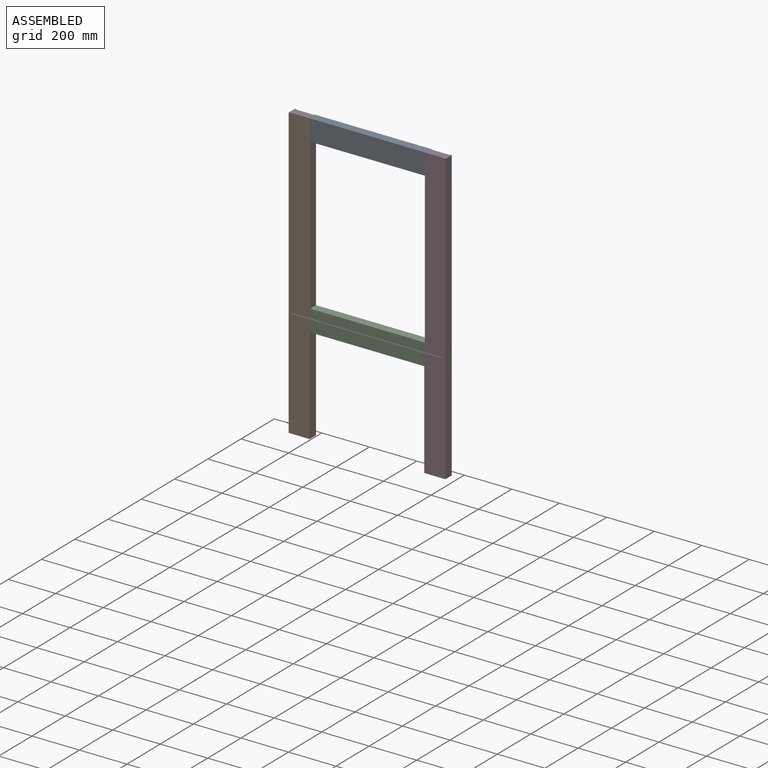
[diagram: assembled view]
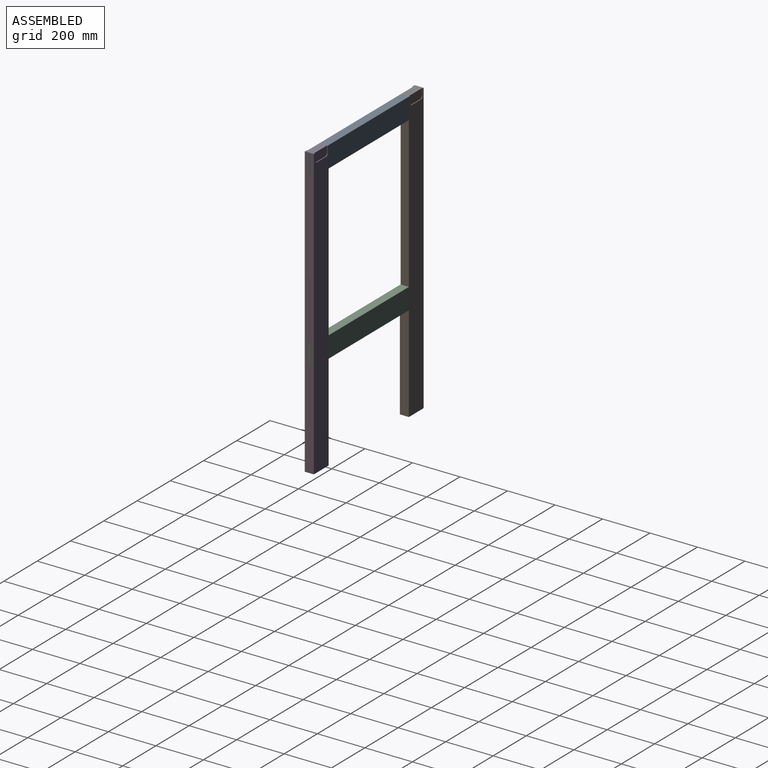
[diagram: assembled view, second angle]
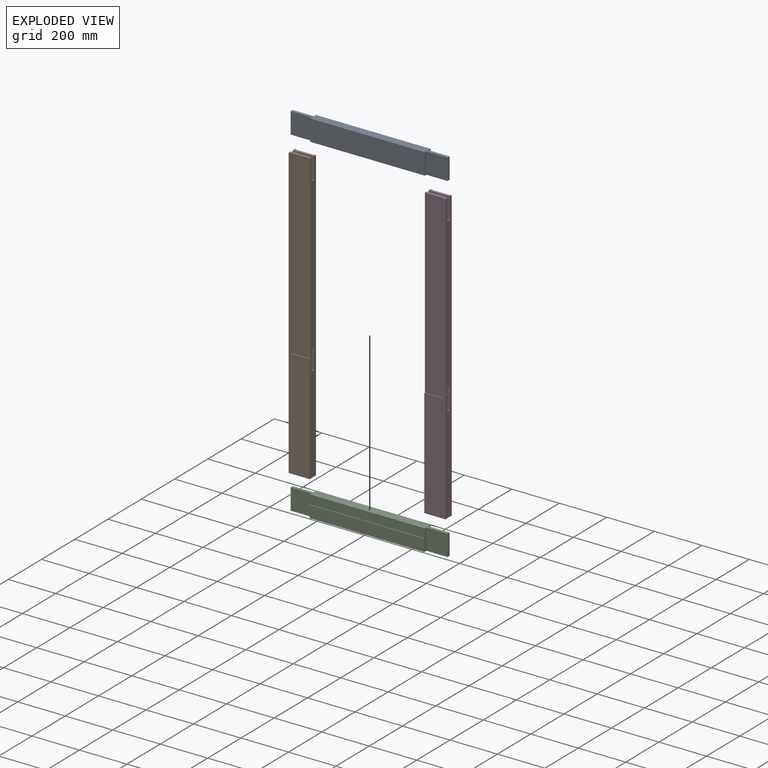
[diagram: exploded view]
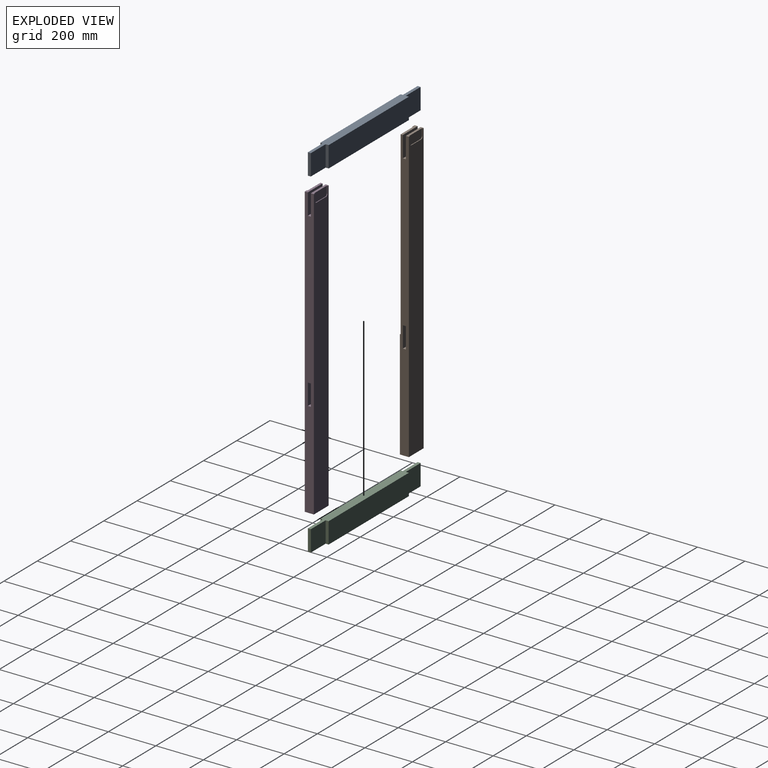
[diagram: exploded view, second angle]
ASSEMBLY  parts=4 mates=3
PART A: 14 faces, bbox 660.4x34.9x88.9 mm
  f0: plane 88.9x9.53mm, normal (1,0,0), area 846.8mm2, adj f3,f4,f5,f12
  f1: plane 88.9x12.7mm, normal (-1,0,0), area 1129mm2, adj f2,f3,f5,f9
  f2: plane 482.6x88.9mm, normal (0,1,0), area 42903.1mm2, adj f1,f3,f5,f6
  f3: plane 660.4x34.93mm, normal (0,0,1), area 19112.9mm2, adj f0,f1,f2,f4,f6,f7,f8,f9
  f4: plane 482.6x88.9mm, normal (0,-1,0), area 42903.1mm2, adj f0,f3,f5,f7
  f5: plane 660.4x34.93mm, normal (0,0,-1), area 19112.9mm2, adj f0,f1,f2,f4,f6,f7,f8,f9
  f6: plane 88.9x12.7mm, normal (1,0,0), area 1129mm2, adj f2,f3,f5,f11
  f7: plane 88.9x9.53mm, normal (-1,0,0), area 846.8mm2, adj f3,f4,f5,f8
  f8: plane 88.9x88.9mm, normal (0,-1,0), area 7903.2mm2, adj f3,f5,f7,f10
  f9: plane 88.9x88.9mm, normal (0,1,0), area 7903.2mm2, adj f1,f3,f5,f10
  f10: plane 88.9x12.7mm, normal (-1,0,0), area 1129mm2, adj f3,f5,f8,f9
  f11: plane 88.9x88.9mm, normal (0,1,0), area 7903.2mm2, adj f3,f5,f6,f13
  f12: plane 88.9x88.9mm, normal (0,-1,0), area 7903.2mm2, adj f0,f3,f5,f13
  f13: plane 88.9x12.7mm, normal (1,0,0), area 1129mm2, adj f3,f5,f11,f12
PART B: 23 faces, bbox 88.9x38.1x1219.2 mm
  f0: plane 1219.2x88.9mm, normal (0,1,0), area 105522.6mm2, adj f1,f4,f5,f6,f13,f14,f15,f16
  f1: plane 88.9x12.7mm, normal (0,0,1), area 887.1mm2, adj f0,f4,f5,f8,f13,f14,f18
  f2: plane 1219.2x88.9mm, normal (0,-1,0), area 50322.5mm2, adj f3,f4,f5,f6,f10,f12
  f3: plane 88.9x12.7mm, normal (0,0,1), area 887.1mm2, adj f2,f4,f5,f7,f10,f11
  f4: plane 1219.2x38.1mm, normal (1,0,0), area 41774.1mm2, adj f0,f1,f2,f3,f6,f7,f8,f9
  f5: plane 1219.2x38.1mm, normal (-1,0,0), area 44193.5mm2, adj f0,f1,f2,f3,f6,f7,f8,f9
  f6: plane 88.9x38.1mm, normal (0,0,-1), area 3387.1mm2, adj f0,f2,f4,f5
  f7: plane 88.9x88.9mm, normal (0,1,0), area 7903.2mm2, adj f3,f4,f5,f9
  f8: plane 88.9x88.9mm, normal (0,-1,0), area 7903.2mm2, adj f1,f4,f5,f9
  f9: plane 88.9x12.7mm, normal (0,0,1), area 1129mm2, adj f4,f5,f7,f8
  f10: plane 762x3.18mm, normal (1,0,0), area 2419.3mm2, adj f2,f3,f11,f12
  f11: plane 762x76.2mm, normal (0,-1,0), area 58064.4mm2, adj f3,f4,f10,f12
  f12: plane 76.2x3.18mm, normal (0,0,1), area 241.9mm2, adj f2,f4,f10,f11
  f13: plane 28.58x3.18mm, normal (-1,0,0), area 90.7mm2, adj f0,f1,f17,f18
  f14: plane 28.58x3.18mm, normal (1,0,0), area 90.7mm2, adj f0,f1,f15,f18
  f15: cylinder r=9.53mm len=9.53mm, axis (0,1,0), area 47.5mm2, adj f0,f14,f16,f18
  f16: plane 57.15x3.18mm, normal (0,0,1), area 181.5mm2, adj f0,f15,f17,f18
  f17: cylinder r=9.53mm len=9.53mm, axis (0,1,0), area 47.5mm2, adj f0,f13,f16,f18
  f18: plane 76.2x38.1mm, normal (0,1,0), area 2864.3mm2, adj f1,f13,f14,f15,f16,f17
  f19: plane 88.9x88.9mm, normal (0,-1,0), area 7903.2mm2, adj f4,f5,f20,f22
  f20: plane 88.9x12.7mm, normal (0,0,1), area 1129mm2, adj f4,f5,f19,f21
  f21: plane 88.9x88.9mm, normal (0,1,0), area 7903.2mm2, adj f4,f5,f20,f22
  f22: plane 88.9x12.7mm, normal (0,0,-1), area 1129mm2, adj f4,f5,f19,f21
PART C: 16 faces, bbox 660.4x38.1x88.9 mm
  f0: plane 88.9x12.7mm, normal (1,0,0), area 1008.1mm2, adj f3,f4,f5,f6,f7,f14
  f1: plane 88.9x12.7mm, normal (-1,0,0), area 1129mm2, adj f2,f3,f7,f11
  f2: plane 482.6x88.9mm, normal (0,1,0), area 42903.1mm2, adj f1,f3,f7,f8
  f3: plane 660.4x34.93mm, normal (0,0,1), area 19112.9mm2, adj f0,f1,f2,f4,f8,f9,f10,f11
  f4: plane 482.6x38.1mm, normal (0,-1,0), area 18387.1mm2, adj f0,f3,f5,f9
  f5: plane 482.6x3.18mm, normal (0,0,1), area 1532.3mm2, adj f0,f4,f6,f9
  f6: plane 482.6x50.8mm, normal (0,-1,0), area 24516.1mm2, adj f0,f5,f7,f9
  f7: plane 660.4x38.1mm, normal (0,0,-1), area 20645.1mm2, adj f0,f1,f2,f6,f8,f9,f10,f11
  f8: plane 88.9x12.7mm, normal (1,0,0), area 1129mm2, adj f2,f3,f7,f13
  f9: plane 88.9x12.7mm, normal (-1,0,0), area 1008.1mm2, adj f3,f4,f5,f6,f7,f10
  f10: plane 88.9x88.9mm, normal (0,-1,0), area 7903.2mm2, adj f3,f7,f9,f12
  f11: plane 88.9x88.9mm, normal (0,1,0), area 7903.2mm2, adj f1,f3,f7,f12
  f12: plane 88.9x12.7mm, normal (-1,0,0), area 1129mm2, adj f3,f7,f10,f11
  f13: plane 88.9x88.9mm, normal (0,1,0), area 7903.2mm2, adj f3,f7,f8,f15
  f14: plane 88.9x88.9mm, normal (0,-1,0), area 7903.2mm2, adj f0,f3,f7,f15
  f15: plane 88.9x12.7mm, normal (1,0,0), area 1129mm2, adj f3,f7,f13,f14
PART D: 23 faces, bbox 88.9x38.1x1219.2 mm
  f0: plane 1219.2x88.9mm, normal (0,1,0), area 105522.6mm2, adj f1,f4,f5,f6,f13,f14,f15,f16
  f1: plane 88.9x12.7mm, normal (0,0,1), area 887.1mm2, adj f0,f4,f5,f8,f13,f14,f18
  f2: plane 1219.2x88.9mm, normal (0,-1,0), area 50322.5mm2, adj f3,f4,f5,f6,f10,f12
  f3: plane 88.9x12.7mm, normal (0,0,1), area 887.1mm2, adj f2,f4,f5,f7,f10,f11
  f4: plane 1219.2x38.1mm, normal (-1,0,0), area 41774.1mm2, adj f0,f1,f2,f3,f6,f7,f8,f9
  f5: plane 1219.2x38.1mm, normal (1,0,0), area 44193.5mm2, adj f0,f1,f2,f3,f6,f7,f8,f9
  f6: plane 88.9x38.1mm, normal (0,0,-1), area 3387.1mm2, adj f0,f2,f4,f5
  f7: plane 88.9x88.9mm, normal (0,1,0), area 7903.2mm2, adj f3,f4,f5,f9
  f8: plane 88.9x88.9mm, normal (0,-1,0), area 7903.2mm2, adj f1,f4,f5,f9
  f9: plane 88.9x12.7mm, normal (0,0,1), area 1129mm2, adj f4,f5,f7,f8
  f10: plane 762x3.18mm, normal (-1,0,0), area 2419.3mm2, adj f2,f3,f11,f12
  f11: plane 762x76.2mm, normal (0,-1,0), area 58064.4mm2, adj f3,f4,f10,f12
  f12: plane 76.2x3.18mm, normal (0,0,1), area 241.9mm2, adj f2,f4,f10,f11
  f13: plane 28.58x3.18mm, normal (1,0,0), area 90.7mm2, adj f0,f1,f17,f18
  f14: plane 28.58x3.18mm, normal (-1,0,0), area 90.7mm2, adj f0,f1,f15,f18
  f15: cylinder r=9.53mm len=9.53mm, axis (0,1,0), area 47.5mm2, adj f0,f14,f16,f18
  f16: plane 57.15x3.18mm, normal (0,0,1), area 181.5mm2, adj f0,f15,f17,f18
  f17: cylinder r=9.53mm len=9.53mm, axis (0,1,0), area 47.5mm2, adj f0,f13,f16,f18
  f18: plane 76.2x38.1mm, normal (0,1,0), area 2864.3mm2, adj f1,f13,f14,f15,f16,f17
  f19: plane 88.9x88.9mm, normal (0,-1,0), area 7903.2mm2, adj f4,f5,f20,f22
  f20: plane 88.9x12.7mm, normal (0,0,1), area 1129mm2, adj f4,f5,f19,f21
  f21: plane 88.9x88.9mm, normal (0,1,0), area 7903.2mm2, adj f4,f5,f20,f22
  f22: plane 88.9x12.7mm, normal (0,0,-1), area 1129mm2, adj f4,f5,f19,f21
PLACE A t=(-1053.43,596.31,-235.94)mm
PLACE B t=(-656.07,503.4,-239.12)mm
PLACE C t=(-1053.43,709.61,110.11)mm
PLACE D t=(-594.81,503.4,-239.12)mm
MATE fastened C.f3 <-> D.f22  axis (0,0,-1) through (-481.93,502.51,256.18)mm
MATE fastened B.f3 <-> A.f3  axis (0,0,-1) through (-1142.33,502.51,980.08)mm
MATE fastened A.f3 <-> D.f3  axis (0,0,-1) through (-481.93,502.51,980.08)mm
